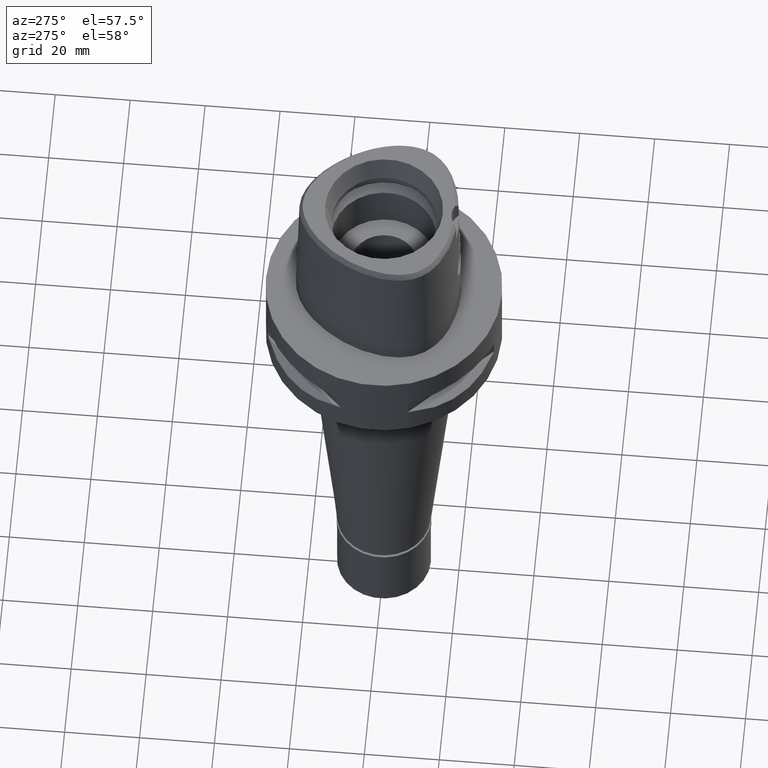
[diagram: clean part render]
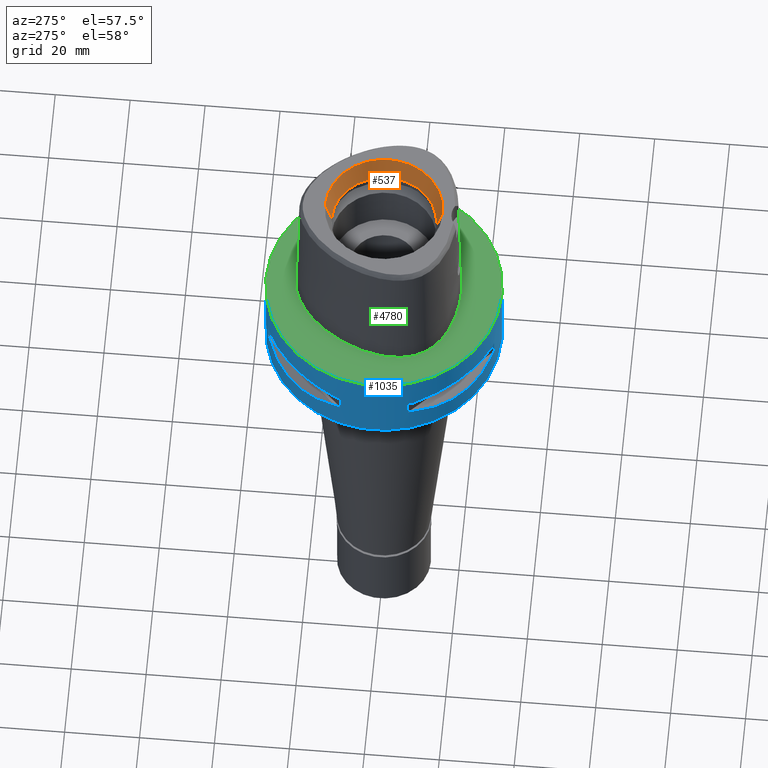
[diagram: same view with three faces highlighted in distinct colors, each labeled with its STEP entity id]
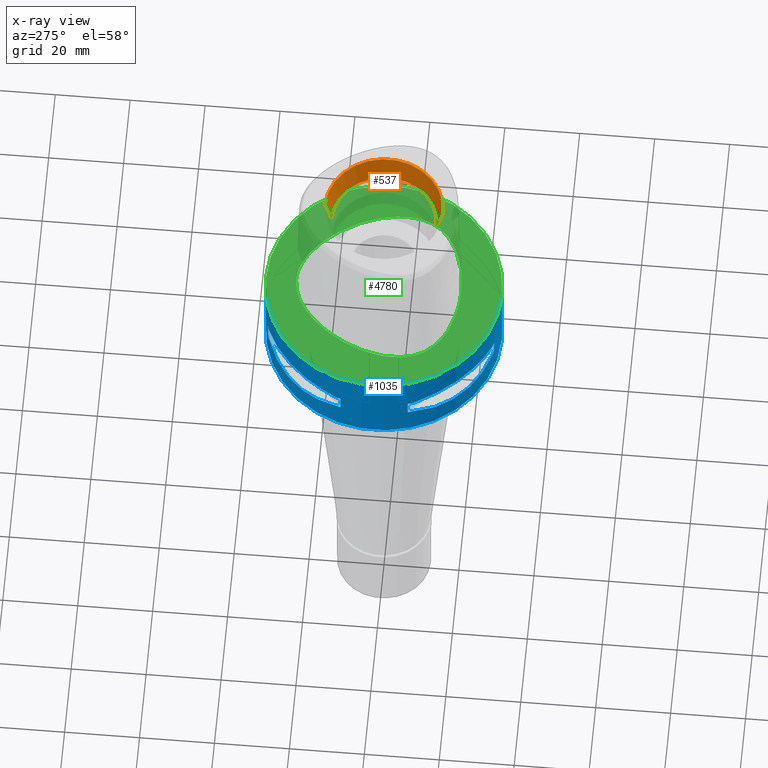
[diagram: x-ray of the same camera — body ghosted, the three highlighted faces saturated]
A machine part, auxiliary view with three faces highlighted in distinct colors.
The next image is the same camera in x-ray (body ghosted, the three faces saturated) — at least one of them is partly hidden behind the body in this view.
Their STEP definitions:

[orange] entity #537 — the highlighted conical surface has half-angle 15 deg.
#63 = CARTESIAN_POINT ( 'NONE',  ( 0.0000000000000000000, 0.0000000000000000000, 38.00000000000000000 ) ) ;
#277 = CARTESIAN_POINT ( 'NONE',  ( 0.0000000000000000000, 14.00000000000000000, 31.60000000000000142 ) ) ;
#298 = DIRECTION ( 'NONE',  ( 0.0000000000000000000, 0.0000000000000000000, 1.000000000000000000 ) ) ;
#302 = LINE ( 'NONE', #3118, #2695 ) ;
#537 = ADVANCED_FACE ( 'NONE', ( #2612 ), #1532, .F. ) ;
#549 = LINE ( 'NONE', #4873, #4037 ) ;
#636 = VERTEX_POINT ( 'NONE', #277 ) ;
#694 = EDGE_CURVE ( 'NONE', #2716, #2167, #2762, .T. ) ;
#714 = CARTESIAN_POINT ( 'NONE',  ( 0.0000000000000000000, 0.0000000000000000000, 34.79999999999999716 ) ) ;
#1393 = EDGE_CURVE ( 'NONE', #2989, #636, #3735, .T. ) ;
#1532 = CONICAL_SURFACE ( 'NONE', #4798, 14.85743741577999977, 0.2617993877991000029 ) ;
#1545 = DIRECTION ( 'NONE',  ( 0.0000000000000000000, 0.0000000000000000000, 1.000000000000000000 ) ) ;
#1934 = DIRECTION ( 'NONE',  ( 0.0000000000000000000, -1.000000000000000000, 0.0000000000000000000 ) ) ;
#2167 = VERTEX_POINT ( 'NONE', #3119 ) ;
#2502 = ORIENTED_EDGE ( 'NONE', *, *, #694, .T. ) ;
#2505 = ORIENTED_EDGE ( 'NONE', *, *, #2813, .F. ) ;
#2612 = FACE_OUTER_BOUND ( 'NONE', #3179, .T. ) ;
#2695 = VECTOR ( 'NONE', #2788, 1000.000000000000000 ) ;
#2716 = VERTEX_POINT ( 'NONE', #4601 ) ;
#2762 = CIRCLE ( 'NONE', #4387, 15.71487483155999776 ) ;
#2788 = DIRECTION ( 'NONE',  ( 0.0000000000000000000, 0.2588190451025869088, 0.9659258262890505486 ) ) ;
#2813 = EDGE_CURVE ( 'NONE', #636, #2167, #302, .T. ) ;
#2989 = VERTEX_POINT ( 'NONE', #3248 ) ;
#3118 = CARTESIAN_POINT ( 'NONE',  ( 0.0000000000000000000, 14.00000000000000000, 31.60000000000000142 ) ) ;
#3119 = CARTESIAN_POINT ( 'NONE',  ( 0.0000000000000000000, 15.71487483155999776, 38.00000000000000000 ) ) ;
#3179 = EDGE_LOOP ( 'NONE', ( #2505, #4924, #4675, #2502 ) ) ;
#3248 = CARTESIAN_POINT ( 'NONE',  ( 0.0000000000000000000, -14.00000000000000000, 31.60000000000000142 ) ) ;
#3423 = DIRECTION ( 'NONE',  ( 0.0000000000000000000, 1.000000000000000000, 0.0000000000000000000 ) ) ;
#3667 = DIRECTION ( 'NONE',  ( 0.0000000000000000000, -0.2588190451025869088, 0.9659258262890505486 ) ) ;
#3735 = CIRCLE ( 'NONE', #4969, 14.00000000000000000 ) ;
#4037 = VECTOR ( 'NONE', #3667, 1000.000000000000000 ) ;
#4283 = DIRECTION ( 'NONE',  ( 0.0000000000000000000, -1.000000000000000000, 0.0000000000000000000 ) ) ;
#4290 = DIRECTION ( 'NONE',  ( 0.0000000000000000000, 0.0000000000000000000, 1.000000000000000000 ) ) ;
#4364 = EDGE_CURVE ( 'NONE', #2989, #2716, #549, .T. ) ;
#4387 = AXIS2_PLACEMENT_3D ( 'NONE', #63, #4290, #1934 ) ;
#4601 = CARTESIAN_POINT ( 'NONE',  ( 0.0000000000000000000, -15.71487483155999776, 38.00000000000000000 ) ) ;
#4675 = ORIENTED_EDGE ( 'NONE', *, *, #4364, .T. ) ;
#4798 = AXIS2_PLACEMENT_3D ( 'NONE', #714, #298, #3423 ) ;
#4873 = CARTESIAN_POINT ( 'NONE',  ( 0.0000000000000000000, -14.00000000000000000, 31.60000000000000142 ) ) ;
#4924 = ORIENTED_EDGE ( 'NONE', *, *, #1393, .F. ) ;
#4969 = AXIS2_PLACEMENT_3D ( 'NONE', #5054, #1545, #4283 ) ;
#5054 = CARTESIAN_POINT ( 'NONE',  ( 0.0000000000000000000, 0.0000000000000000000, 31.60000000000000142 ) ) ;

[blue] entity #1035 — the highlighted cylindrical surface (partial cylindrical patch) has radius 31.5 mm, axis along (0, 0, -1).
#18 = CARTESIAN_POINT ( 'NONE',  ( -23.90617837147178193, 20.64154884328071660, -8.160613588465007950 ) ) ;
#37 = CARTESIAN_POINT ( 'NONE',  ( -8.981198972017999438, -30.19251670572000279, -14.05000000000000071 ) ) ;
#54 = CARTESIAN_POINT ( 'NONE',  ( -16.98999780422078132, -26.52527364208593141, -15.41788098766319060 ) ) ;
#86 = EDGE_CURVE ( 'NONE', #2191, #3855, #4059, .T. ) ;
#94 = CARTESIAN_POINT ( 'NONE',  ( -12.70092055730904868, 28.92474506844682125, -9.353547358226720121 ) ) ;
#134 = DIRECTION ( 'NONE',  ( 0.0000000000000000000, 0.0000000000000000000, -1.000000000000000000 ) ) ;
#147 = CARTESIAN_POINT ( 'NONE',  ( -18.81462633032051102, -25.37272068398778657, -8.309724968596476913 ) ) ;
#151 = DIRECTION ( 'NONE',  ( 0.0000000000000000000, 1.000000000000000000, 0.0000000000000000000 ) ) ;
#164 = CARTESIAN_POINT ( 'NONE',  ( -16.89910283486523923, 26.58330558444462355, -15.40446471307224741 ) ) ;
#189 = CARTESIAN_POINT ( 'NONE',  ( -27.86285265926610322, 14.89252659057099493, -15.10765629751760031 ) ) ;
#213 = DIRECTION ( 'NONE',  ( 0.0000000000000000000, 0.0000000000000000000, 1.000000000000000000 ) ) ;
#224 = CARTESIAN_POINT ( 'NONE',  ( 0.0000000000000000000, -31.50000000000000000, 0.0000000000000000000 ) ) ;
#225 = AXIS2_PLACEMENT_3D ( 'NONE', #4962, #372, #2419 ) ;
#246 = FACE_BOUND ( 'NONE', #3602, .T. ) ;
#257 = ORIENTED_EDGE ( 'NONE', *, *, #492, .F. ) ;
#296 = ORIENTED_EDGE ( 'NONE', *, *, #4521, .F. ) ;
#307 = DIRECTION ( 'NONE',  ( -0.2851174276831918153, -0.9584925938322735872, 0.0000000000000000000 ) ) ;
#325 = B_SPLINE_CURVE_WITH_KNOTS ( 'NONE', 3,
 ( #5024, #4234, #1043, #3843, #337, #4637, #1825, #1138, #1423, #2602, #4158, #657, #1189, #1566, #1643, #1266, #3560, #3483, #779, #54, #1975, #4304, #806, #2749 ),
 .UNSPECIFIED., .F., .F.,
 ( 4, 1, 1, 1, 1, 1, 2, 2, 2, 1, 1, 1, 1, 1, 2, 2, 4 ),
 ( 0.0000000000000000000, 0.1249999999999912292, 0.1874999999999869826, 0.2187499999999850120, 0.2343749999999839295, 0.2421874999999835409, 0.2460937499999835687, 0.2499999999999836242, 0.4999999999999924505, 0.6249999999999968914, 0.6874999999999992228, 0.7187500000000003331, 0.7343750000000009992, 0.7421875000000014433, 0.7460937500000016653, 0.7500000000000019984, 1.000000000000000000 ),
 .UNSPECIFIED. ) ;
#337 = CARTESIAN_POINT ( 'NONE',  ( -27.11872488588860008, -16.03138450079452682, -15.26880420107959146 ) ) ;
#338 = CARTESIAN_POINT ( 'NONE',  ( -29.71690375017999841, 10.44775724750000023, -9.949999999998999201 ) ) ;
#363 = CARTESIAN_POINT ( 'NONE',  ( -10.44775724750000023, 29.71690375017999841, -9.949999999998999201 ) ) ;
#372 = DIRECTION ( 'NONE',  ( 0.0000000000000000000, 0.0000000000000000000, -1.000000000000000000 ) ) ;
#387 = AXIS2_PLACEMENT_3D ( 'NONE', #546, #2464, #2899 ) ;
#400 = CIRCLE ( 'NONE', #4814, 31.50000000000001776 ) ;
#422 = DIRECTION ( 'NONE',  ( 0.0000000000000000000, 0.0000000000000000000, 1.000000000000000000 ) ) ;
#438 = VERTEX_POINT ( 'NONE', #2637 ) ;
#458 = DIRECTION ( 'NONE',  ( 0.0000000000000000000, 0.0000000000000000000, 1.000000000000000000 ) ) ;
#492 = EDGE_CURVE ( 'NONE', #1631, #3046, #1121, .T. ) ;
#497 = CARTESIAN_POINT ( 'NONE',  ( -29.71690375017999841, -10.44775724750000023, -9.949999999998999201 ) ) ;
#510 = CARTESIAN_POINT ( 'NONE',  ( -18.81455742163205613, 25.37277178168285729, -8.309746333127383977 ) ) ;
#514 = CARTESIAN_POINT ( 'NONE',  ( 0.0000000000000000000, 0.0000000000000000000, -22.00000000000000000 ) ) ;
#522 = CARTESIAN_POINT ( 'NONE',  ( -30.19251670572000279, -8.981198972019999616, -9.950000000000001066 ) ) ;
#546 = CARTESIAN_POINT ( 'NONE',  ( 0.0000000000000000000, 0.0000000000000000000, -9.950000000000001066 ) ) ;
#553 = CARTESIAN_POINT ( 'NONE',  ( -26.01217882834774997, 17.76952662671796901, -15.52665221626049608 ) ) ;
#560 = CARTESIAN_POINT ( 'NONE',  ( -12.70097436183466577, -28.92472615205409880, -9.353533115206113635 ) ) ;
#567 = CIRCLE ( 'NONE', #1464, 31.50000000000000711 ) ;
#581 = CARTESIAN_POINT ( 'NONE',  ( -16.86571563436660171, 26.60451452154748608, -15.39949295786010097 ) ) ;
#603 = CARTESIAN_POINT ( 'NONE',  ( -16.80193241490601253, 26.64486562695759631, -15.38992683735703437 ) ) ;
#616 = AXIS2_PLACEMENT_3D ( 'NONE', #4047, #213, #4100 ) ;
#632 = AXIS2_PLACEMENT_3D ( 'NONE', #4545, #1856, #4166 ) ;
#651 = ORIENTED_EDGE ( 'NONE', *, *, #4877, .F. ) ;
#657 = CARTESIAN_POINT ( 'NONE',  ( -23.89673728055697310, -20.65093790435582122, -15.83935804901768307 ) ) ;
#659 = EDGE_CURVE ( 'NONE', #2040, #2556, #4630, .T. ) ;
#720 = EDGE_CURVE ( 'NONE', #1279, #3046, #1290, .T. ) ;
#748 = EDGE_CURVE ( 'NONE', #3687, #1821, #836, .T. ) ;
#767 = VERTEX_POINT ( 'NONE', #4697 ) ;
#779 = CARTESIAN_POINT ( 'NONE',  ( -17.05047092244258522, -26.48642424310472876, -15.42670883407663496 ) ) ;
#806 = CARTESIAN_POINT ( 'NONE',  ( -12.73197616787212993, -28.91382665369246752, -14.65467361753630549 ) ) ;
#820 = CARTESIAN_POINT ( 'NONE',  ( -27.88214534470564843, -14.84422749199030811, -8.906206096497941260 ) ) ;
#836 = LINE ( 'NONE', #37, #3412 ) ;
#845 = EDGE_CURVE ( 'NONE', #2040, #4357, #4087, .T. ) ;
#865 = CARTESIAN_POINT ( 'NONE',  ( -16.03138450078630584, 27.11872488589149199, -15.26880420107739234 ) ) ;
#905 = CARTESIAN_POINT ( 'NONE',  ( 0.0000000000000000000, 0.0000000000000000000, -9.950000000000001066 ) ) ;
#913 = CARTESIAN_POINT ( 'NONE',  ( -8.981198972017999438, 30.19251670572000279, -9.950000000000001066 ) ) ;
#926 = EDGE_CURVE ( 'NONE', #1579, #2208, #3620, .T. ) ;
#944 = CARTESIAN_POINT ( 'NONE',  ( -26.52527364208594562, 16.98999780422062500, -15.41788098766312487 ) ) ;
#995 = CARTESIAN_POINT ( 'NONE',  ( -28.91382665368951876, 12.73197616788052500, -14.65467361753852060 ) ) ;
#1035 = ADVANCED_FACE ( 'NONE', ( #3748, #3822, #246 ), #1827, .T. ) ;
#1043 = CARTESIAN_POINT ( 'NONE',  ( -28.62019653467925551, -13.25636937906381974, -14.74888225542034448 ) ) ;
#1083 = CARTESIAN_POINT ( 'NONE',  ( -8.981198972019999616, -30.19251670572000279, -14.05000000000000071 ) ) ;
#1105 = AXIS2_PLACEMENT_3D ( 'NONE', #3642, #134, #4183 ) ;
#1121 = LINE ( 'NONE', #4138, #1776 ) ;
#1138 = CARTESIAN_POINT ( 'NONE',  ( -26.64486562695712379, -16.80193241490734835, -15.38992683735741451 ) ) ;
#1185 = CIRCLE ( 'NONE', #1105, 31.50000000000000000 ) ;
#1189 = CARTESIAN_POINT ( 'NONE',  ( -21.46242677078074834, -23.08532645888130830, -15.83938991065315172 ) ) ;
#1197 = CARTESIAN_POINT ( 'NONE',  ( -10.44775724750000023, 29.71690375017999841, -14.05000000000000071 ) ) ;
#1212 = AXIS2_PLACEMENT_3D ( 'NONE', #2955, #2260, #4186 ) ;
#1247 = CARTESIAN_POINT ( 'NONE',  ( -15.11986997310366299, 27.64634172018154246, -15.11207862403683144 ) ) ;
#1251 = ORIENTED_EDGE ( 'NONE', *, *, #3241, .T. ) ;
#1266 = CARTESIAN_POINT ( 'NONE',  ( -17.76952662671988392, -26.01217882834739470, -15.52665221626113912 ) ) ;
#1279 = VERTEX_POINT ( 'NONE', #338 ) ;
#1290 = CIRCLE ( 'NONE', #2098, 31.50000000000000711 ) ;
#1299 = AXIS2_PLACEMENT_3D ( 'NONE', #514, #3252, #151 ) ;
#1300 = DIRECTION ( 'NONE',  ( 0.0000000000000000000, 0.0000000000000000000, -1.000000000000000000 ) ) ;
#1323 = CARTESIAN_POINT ( 'NONE',  ( 0.0000000000000000000, 0.0000000000000000000, -14.05000000000000071 ) ) ;
#1423 = CARTESIAN_POINT ( 'NONE',  ( -26.60451452154724805, -16.86571563436727317, -15.39949295786030348 ) ) ;
#1464 = AXIS2_PLACEMENT_3D ( 'NONE', #905, #458, #2093 ) ;
#1470 = EDGE_CURVE ( 'NONE', #2748, #3449, #4149, .T. ) ;
#1501 = DIRECTION ( 'NONE',  ( 0.0000000000000000000, 0.0000000000000000000, 1.000000000000000000 ) ) ;
#1557 = ORIENTED_EDGE ( 'NONE', *, *, #3496, .F. ) ;
#1566 = CARTESIAN_POINT ( 'NONE',  ( -20.18579225686149314, -24.23018836745477245, -15.78559396979075125 ) ) ;
#1579 = VERTEX_POINT ( 'NONE', #3025 ) ;
#1580 = CARTESIAN_POINT ( 'NONE',  ( -27.88210502983995553, 14.84430321578703271, -8.906184731967027091 ) ) ;
#1582 = CARTESIAN_POINT ( 'NONE',  ( 0.0000000000000000000, 31.50000000000000000, -22.00000000000000000 ) ) ;
#1594 = ORIENTED_EDGE ( 'NONE', *, *, #1470, .T. ) ;
#1631 = VERTEX_POINT ( 'NONE', #3816 ) ;
#1643 = CARTESIAN_POINT ( 'NONE',  ( -18.59229662065117594, -25.43927894891756125, -15.62866126334438732 ) ) ;
#1673 = LINE ( 'NONE', #3184, #4035 ) ;
#1684 = CARTESIAN_POINT ( 'NONE',  ( -28.92472615205409170, 12.70097436183465867, -9.353533115206113635 ) ) ;
#1744 = DIRECTION ( 'NONE',  ( 0.0000000000000000000, 0.0000000000000000000, -1.000000000000000000 ) ) ;
#1776 = VECTOR ( 'NONE', #1501, 1000.000000000000000 ) ;
#1810 = ORIENTED_EDGE ( 'NONE', *, *, #3795, .F. ) ;
#1821 = VERTEX_POINT ( 'NONE', #1907 ) ;
#1825 = CARTESIAN_POINT ( 'NONE',  ( -26.70521063584408950, -16.70616724746141202, -15.37546661817775373 ) ) ;
#1827 = CYLINDRICAL_SURFACE ( 'NONE', #1212, 31.50000000000000000 ) ;
#1856 = DIRECTION ( 'NONE',  ( 0.0000000000000000000, 0.0000000000000000000, -1.000000000000000000 ) ) ;
#1878 = ORIENTED_EDGE ( 'NONE', *, *, #3747, .T. ) ;
#1907 = CARTESIAN_POINT ( 'NONE',  ( -8.981198972017999438, -30.19251670572000279, -9.950000000000001066 ) ) ;
#1965 = VERTEX_POINT ( 'NONE', #2968 ) ;
#1967 = CARTESIAN_POINT ( 'NONE',  ( -29.71690375017999841, -10.44775724750000023, -14.05000000000000071 ) ) ;
#1975 = CARTESIAN_POINT ( 'NONE',  ( -16.96123479564944247, -26.54368690921640450, -15.41365572341321766 ) ) ;
#1989 = CARTESIAN_POINT ( 'NONE',  ( -23.90617837147174640, -20.64154884328073791, -8.160627831309671620 ) ) ;
#2040 = VERTEX_POINT ( 'NONE', #2620 ) ;
#2065 = CARTESIAN_POINT ( 'NONE',  ( -29.71690375017999841, 10.44775724750000023, -9.949999999998999201 ) ) ;
#2093 = DIRECTION ( 'NONE',  ( -0.3316748332540863653, -0.9433937698468619626, 0.0000000000000000000 ) ) ;
#2098 = AXIS2_PLACEMENT_3D ( 'NONE', #3570, #422, #4722 ) ;
#2126 = ORIENTED_EDGE ( 'NONE', *, *, #720, .T. ) ;
#2151 = ORIENTED_EDGE ( 'NONE', *, *, #2967, .T. ) ;
#2158 = CARTESIAN_POINT ( 'NONE',  ( -20.65093790435489396, 23.89673728056195756, -15.83935804901932087 ) ) ;
#2191 = VERTEX_POINT ( 'NONE', #1967 ) ;
#2199 = VECTOR ( 'NONE', #3838, 1000.000000000000000 ) ;
#2208 = VERTEX_POINT ( 'NONE', #1582 ) ;
#2223 = ORIENTED_EDGE ( 'NONE', *, *, #4564, .T. ) ;
#2260 = DIRECTION ( 'NONE',  ( 0.0000000000000000000, 0.0000000000000000000, -1.000000000000000000 ) ) ;
#2277 = LINE ( 'NONE', #4922, #2199 ) ;
#2283 = EDGE_CURVE ( 'NONE', #2208, #438, #3495, .T. ) ;
#2306 = EDGE_CURVE ( 'NONE', #767, #1821, #567, .T. ) ;
#2374 = CARTESIAN_POINT ( 'NONE',  ( -25.37277178168285374, -18.81455742163204548, -8.309746333127382201 ) ) ;
#2419 = DIRECTION ( 'NONE',  ( -0.3316748332540863653, 0.9433937698468619626, 0.0000000000000000000 ) ) ;
#2454 = CARTESIAN_POINT ( 'NONE',  ( -25.37272068398780434, 18.81462633032049325, -8.309724968596476913 ) ) ;
#2464 = DIRECTION ( 'NONE',  ( 0.0000000000000000000, 0.0000000000000000000, 1.000000000000000000 ) ) ;
#2471 = CARTESIAN_POINT ( 'NONE',  ( -26.48642424310478205, 17.05047092244226903, -15.42670883407652305 ) ) ;
#2556 = VERTEX_POINT ( 'NONE', #4940 ) ;
#2588 = B_SPLINE_CURVE_WITH_KNOTS ( 'NONE', 3,
 ( #3604, #94, #2763, #510, #2839, #18, #2454, #1580, #1684, #2065 ),
 .UNSPECIFIED., .F., .F.,
 ( 4, 2, 2, 2, 4 ),
 ( 0.0000000000000000000, 0.2500000000000000000, 0.5000000000000000000, 0.7500000000000000000, 1.000000000000000000 ),
 .UNSPECIFIED. ) ;
#2602 = CARTESIAN_POINT ( 'NONE',  ( -26.58330558444475145, -16.89910283486517528, -15.40446471307230070 ) ) ;
#2620 = CARTESIAN_POINT ( 'NONE',  ( -10.44775724750000023, 29.71690375017999841, -14.05000000000000071 ) ) ;
#2637 = CARTESIAN_POINT ( 'NONE',  ( 0.0000000000000000000, -31.50000000000000000, -22.00000000000000000 ) ) ;
#2659 = VECTOR ( 'NONE', #1744, 1000.000000000000000 ) ;
#2687 = VECTOR ( 'NONE', #1300, 1000.000000000000000 ) ;
#2732 = DIRECTION ( 'NONE',  ( 0.0000000000000000000, 0.0000000000000000000, 1.000000000000000000 ) ) ;
#2748 = VERTEX_POINT ( 'NONE', #4624 ) ;
#2749 = CARTESIAN_POINT ( 'NONE',  ( -10.44775724750000023, -29.71690375017999841, -14.05000000000000071 ) ) ;
#2757 = CARTESIAN_POINT ( 'NONE',  ( -13.25636937904505785, 28.62019653468586355, -14.74888225541535292 ) ) ;
#2761 = ORIENTED_EDGE ( 'NONE', *, *, #5035, .T. ) ;
#2763 = CARTESIAN_POINT ( 'NONE',  ( -14.84422749199032943, 27.88214534470564132, -8.906206096497943037 ) ) ;
#2804 = CARTESIAN_POINT ( 'NONE',  ( -11.58970337494912251, 29.31542262584540737, -14.35229357167066233 ) ) ;
#2839 = CARTESIAN_POINT ( 'NONE',  ( -20.64154884328072370, 23.90617837147176772, -8.160627831309673397 ) ) ;
#2879 = DIRECTION ( 'NONE',  ( 0.0000000000000000000, 0.0000000000000000000, -1.000000000000000000 ) ) ;
#2899 = DIRECTION ( 'NONE',  ( -0.2851174276831918153, 0.9584925938322735872, 0.0000000000000000000 ) ) ;
#2955 = CARTESIAN_POINT ( 'NONE',  ( 0.0000000000000000000, 0.0000000000000000000, 6.440000000000000391 ) ) ;
#2967 = EDGE_CURVE ( 'NONE', #3449, #1279, #2588, .T. ) ;
#2968 = CARTESIAN_POINT ( 'NONE',  ( -10.44775724750000023, -29.71690375017999841, -14.05000000000000071 ) ) ;
#2979 = CARTESIAN_POINT ( 'NONE',  ( -30.19251670572000279, -8.981198972017999438, -14.05000000000000071 ) ) ;
#2998 = EDGE_CURVE ( 'NONE', #3574, #767, #3189, .T. ) ;
#3002 = VERTEX_POINT ( 'NONE', #224 ) ;
#3025 = CARTESIAN_POINT ( 'NONE',  ( 0.0000000000000000000, 31.50000000000000000, 0.0000000000000000000 ) ) ;
#3046 = VERTEX_POINT ( 'NONE', #4913 ) ;
#3167 = ORIENTED_EDGE ( 'NONE', *, *, #748, .F. ) ;
#3184 = CARTESIAN_POINT ( 'NONE',  ( -30.19251670572000279, -8.981198972017999438, -9.950000000000001066 ) ) ;
#3189 = B_SPLINE_CURVE_WITH_KNOTS ( 'NONE', 3,
 ( #4703, #4320, #820, #2374, #1989, #3927, #147, #3652, #560, #3325 ),
 .UNSPECIFIED., .F., .F.,
 ( 4, 2, 2, 2, 4 ),
 ( 0.0000000000000000000, 0.2499999999999998335, 0.4999999999999998890, 0.7499999999999998890, 1.000000000000000000 ),
 .UNSPECIFIED. ) ;
#3213 = CARTESIAN_POINT ( 'NONE',  ( -18.86897208075099996, 25.32725744466366891, -15.69588095933659488 ) ) ;
#3241 = EDGE_CURVE ( 'NONE', #1631, #4357, #3889, .T. ) ;
#3252 = DIRECTION ( 'NONE',  ( 0.0000000000000000000, 0.0000000000000000000, 1.000000000000000000 ) ) ;
#3266 = CARTESIAN_POINT ( 'NONE',  ( -23.08532645888177015, 21.46242677077824368, -15.83938991065229196 ) ) ;
#3294 = EDGE_LOOP ( 'NONE', ( #2126, #257, #1251, #4561, #3854, #296, #1594, #2151 ) ) ;
#3318 = CARTESIAN_POINT ( 'NONE',  ( -25.43927894891815811, 18.59229662064788258, -15.62866126334327710 ) ) ;
#3324 = ORIENTED_EDGE ( 'NONE', *, *, #86, .T. ) ;
#3325 = CARTESIAN_POINT ( 'NONE',  ( -10.44775724750000023, -29.71690375017999841, -9.949999999998999201 ) ) ;
#3412 = VECTOR ( 'NONE', #2732, 1000.000000000000000 ) ;
#3449 = VERTEX_POINT ( 'NONE', #363 ) ;
#3475 = ORIENTED_EDGE ( 'NONE', *, *, #926, .T. ) ;
#3483 = CARTESIAN_POINT ( 'NONE',  ( -17.14106442934748742, -26.42800887047532754, -15.43984550238493547 ) ) ;
#3495 = CIRCLE ( 'NONE', #1299, 31.50000000000000000 ) ;
#3496 = EDGE_CURVE ( 'NONE', #2191, #1965, #325, .T. ) ;
#3519 = DIRECTION ( 'NONE',  ( 0.0000000000000000000, 0.0000000000000000000, -1.000000000000000000 ) ) ;
#3560 = CARTESIAN_POINT ( 'NONE',  ( -17.35163608579770766, -26.29071741523690875, -15.46976201925451022 ) ) ;
#3570 = CARTESIAN_POINT ( 'NONE',  ( 0.0000000000000000000, 0.0000000000000000000, -9.950000000000001066 ) ) ;
#3574 = VERTEX_POINT ( 'NONE', #497 ) ;
#3602 = EDGE_LOOP ( 'NONE', ( #3603, #3167, #1878, #1557, #3324, #651, #2761, #4195 ) ) ;
#3603 = ORIENTED_EDGE ( 'NONE', *, *, #2306, .T. ) ;
#3604 = CARTESIAN_POINT ( 'NONE',  ( -10.44775724750000023, 29.71690375017999841, -9.949999999998999201 ) ) ;
#3620 = LINE ( 'NONE', #4799, #2687 ) ;
#3642 = CARTESIAN_POINT ( 'NONE',  ( 0.0000000000000000000, 0.0000000000000000000, 0.0000000000000000000 ) ) ;
#3652 = CARTESIAN_POINT ( 'NONE',  ( -14.84430321578703804, -27.88210502983994843, -8.906184731967027091 ) ) ;
#3671 = CARTESIAN_POINT ( 'NONE',  ( -29.71690375017999841, 10.44775724750000023, -14.05000000000000071 ) ) ;
#3687 = VERTEX_POINT ( 'NONE', #1083 ) ;
#3693 = CARTESIAN_POINT ( 'NONE',  ( -26.29071741523710060, 17.35163608579668804, -15.46976201925415317 ) ) ;
#3713 = CARTESIAN_POINT ( 'NONE',  ( -29.71690375017999841, 10.44775724750000023, -14.05000000000000071 ) ) ;
#3747 = EDGE_CURVE ( 'NONE', #3687, #1965, #400, .T. ) ;
#3748 = FACE_OUTER_BOUND ( 'NONE', #4594, .T. ) ;
#3795 = EDGE_CURVE ( 'NONE', #3002, #438, #2277, .T. ) ;
#3797 = CIRCLE ( 'NONE', #616, 31.50000000000001776 ) ;
#3814 = CARTESIAN_POINT ( 'NONE',  ( 0.0000000000000000000, 0.0000000000000000000, -14.05000000000000071 ) ) ;
#3816 = CARTESIAN_POINT ( 'NONE',  ( -30.19251670572000279, 8.981198972019999616, -14.05000000000000071 ) ) ;
#3822 = FACE_BOUND ( 'NONE', #3294, .T. ) ;
#3838 = DIRECTION ( 'NONE',  ( 0.0000000000000000000, 0.0000000000000000000, -1.000000000000000000 ) ) ;
#3843 = CARTESIAN_POINT ( 'NONE',  ( -27.64634172017658642, -15.11986997311774417, -15.11207862404057423 ) ) ;
#3854 = ORIENTED_EDGE ( 'NONE', *, *, #659, .T. ) ;
#3855 = VERTEX_POINT ( 'NONE', #2979 ) ;
#3889 = CIRCLE ( 'NONE', #4139, 31.50000000000001776 ) ;
#3922 = CARTESIAN_POINT ( 'NONE',  ( -16.70616724745912407, 26.70521063584489596, -15.37546661817712490 ) ) ;
#3927 = CARTESIAN_POINT ( 'NONE',  ( -20.64154884328073081, -23.90617837147176061, -8.160613588465007950 ) ) ;
#4035 = VECTOR ( 'NONE', #3519, 1000.000000000000000 ) ;
#4046 = LINE ( 'NONE', #913, #2659 ) ;
#4047 = CARTESIAN_POINT ( 'NONE',  ( 0.0000000000000000000, 0.0000000000000000000, -9.950000000000001066 ) ) ;
#4059 = CIRCLE ( 'NONE', #632, 31.50000000000000711 ) ;
#4087 = B_SPLINE_CURVE_WITH_KNOTS ( 'NONE', 3,
 ( #1197, #2804, #2757, #1247, #865, #4313, #3922, #603, #581, #164, #3213, #2158, #3266, #4439, #3318, #553, #3693, #4878, #2471, #944, #4772, #189, #995, #3671 ),
 .UNSPECIFIED., .F., .F.,
 ( 4, 1, 1, 1, 1, 1, 2, 2, 2, 1, 1, 1, 1, 1, 2, 2, 4 ),
 ( 0.0000000000000000000, 0.1249999999999917843, 0.1874999999999877320, 0.2187499999999857059, 0.2343749999999849287, 0.2421874999999843736, 0.2460937499999842071, 0.2499999999999840128, 0.4999999999999846789, 0.6249999999999850120, 0.6874999999999850120, 0.7187499999999851230, 0.7343749999999852340, 0.7421874999999852340, 0.7460937499999851230, 0.7499999999999851230, 1.000000000000000000 ),
 .UNSPECIFIED. ) ;
#4100 = DIRECTION ( 'NONE',  ( -0.9584925938322735872, -0.2851174276831918153, 0.0000000000000000000 ) ) ;
#4138 = CARTESIAN_POINT ( 'NONE',  ( -30.19251670572000279, 8.981198972017999438, -14.05000000000000071 ) ) ;
#4139 = AXIS2_PLACEMENT_3D ( 'NONE', #1323, #2879, #4437 ) ;
#4149 = CIRCLE ( 'NONE', #387, 31.50000000000001776 ) ;
#4158 = CARTESIAN_POINT ( 'NONE',  ( -25.32725744465475515, -18.86897208075581034, -15.69588095933493932 ) ) ;
#4166 = DIRECTION ( 'NONE',  ( -0.9433937698468619626, -0.3316748332540863653, 0.0000000000000000000 ) ) ;
#4179 = DIRECTION ( 'NONE',  ( 0.0000000000000000000, 0.0000000000000000000, -1.000000000000000000 ) ) ;
#4183 = DIRECTION ( 'NONE',  ( 0.0000000000000000000, -1.000000000000000000, 0.0000000000000000000 ) ) ;
#4186 = DIRECTION ( 'NONE',  ( 0.0000000000000000000, -1.000000000000000000, 0.0000000000000000000 ) ) ;
#4195 = ORIENTED_EDGE ( 'NONE', *, *, #2998, .T. ) ;
#4234 = CARTESIAN_POINT ( 'NONE',  ( -29.31542262584164504, -11.58970337495982328, -14.35229357167352049 ) ) ;
#4304 = CARTESIAN_POINT ( 'NONE',  ( -14.89252659056261052, -27.86285265926905197, -15.10765629751539230 ) ) ;
#4313 = CARTESIAN_POINT ( 'NONE',  ( -16.48208282229096611, 26.84474411198699784, -15.34094883778013596 ) ) ;
#4320 = CARTESIAN_POINT ( 'NONE',  ( -28.92474506844684257, -12.70092055730902736, -9.353547358226718345 ) ) ;
#4357 = VERTEX_POINT ( 'NONE', #3713 ) ;
#4437 = DIRECTION ( 'NONE',  ( -0.9584925938322735872, 0.2851174276831918153, 0.0000000000000000000 ) ) ;
#4439 = CARTESIAN_POINT ( 'NONE',  ( -24.23018836745557181, 20.18579225685711265, -15.78559396978928397 ) ) ;
#4521 = EDGE_CURVE ( 'NONE', #2748, #2556, #4046, .T. ) ;
#4536 = VERTEX_POINT ( 'NONE', #522 ) ;
#4545 = CARTESIAN_POINT ( 'NONE',  ( 0.0000000000000000000, 0.0000000000000000000, -14.05000000000000071 ) ) ;
#4561 = ORIENTED_EDGE ( 'NONE', *, *, #845, .F. ) ;
#4564 = EDGE_CURVE ( 'NONE', #3002, #1579, #1185, .T. ) ;
#4594 = EDGE_LOOP ( 'NONE', ( #4832, #1810, #2223, #3475 ) ) ;
#4624 = CARTESIAN_POINT ( 'NONE',  ( -8.981198972019999616, 30.19251670572000279, -9.950000000000001066 ) ) ;
#4630 = CIRCLE ( 'NONE', #225, 31.50000000000000711 ) ;
#4637 = CARTESIAN_POINT ( 'NONE',  ( -26.84474411198545596, -16.48208282229538213, -15.34094883778132790 ) ) ;
#4697 = CARTESIAN_POINT ( 'NONE',  ( -10.44775724750000023, -29.71690375017999841, -9.949999999998999201 ) ) ;
#4703 = CARTESIAN_POINT ( 'NONE',  ( -29.71690375017999841, -10.44775724750000023, -9.949999999998999201 ) ) ;
#4722 = DIRECTION ( 'NONE',  ( -0.9433937698468619626, 0.3316748332540863653, 0.0000000000000000000 ) ) ;
#4772 = CARTESIAN_POINT ( 'NONE',  ( -26.54368690921645069, 16.96123479564930747, -15.41365572341317147 ) ) ;
#4799 = CARTESIAN_POINT ( 'NONE',  ( 0.0000000000000000000, 31.50000000000000000, 0.0000000000000000000 ) ) ;
#4814 = AXIS2_PLACEMENT_3D ( 'NONE', #3814, #4179, #307 ) ;
#4832 = ORIENTED_EDGE ( 'NONE', *, *, #2283, .T. ) ;
#4877 = EDGE_CURVE ( 'NONE', #4536, #3855, #1673, .T. ) ;
#4878 = CARTESIAN_POINT ( 'NONE',  ( -26.42800887047543767, 17.14106442934696162, -15.43984550238475251 ) ) ;
#4913 = CARTESIAN_POINT ( 'NONE',  ( -30.19251670572000279, 8.981198972017999438, -9.950000000000001066 ) ) ;
#4922 = CARTESIAN_POINT ( 'NONE',  ( 0.0000000000000000000, -31.50000000000000000, 0.0000000000000000000 ) ) ;
#4940 = CARTESIAN_POINT ( 'NONE',  ( -8.981198972017999438, 30.19251670572000279, -14.05000000000000071 ) ) ;
#4962 = CARTESIAN_POINT ( 'NONE',  ( 0.0000000000000000000, 0.0000000000000000000, -14.05000000000000071 ) ) ;
#5024 = CARTESIAN_POINT ( 'NONE',  ( -29.71690375017999841, -10.44775724750000023, -14.05000000000000071 ) ) ;
#5035 = EDGE_CURVE ( 'NONE', #4536, #3574, #3797, .T. ) ;

[green] entity #4780 — the highlighted planar face has unit normal (0, 0, -1).
#3 = ORIENTED_EDGE ( 'NONE', *, *, #4564, .F. ) ;
#112 = CARTESIAN_POINT ( 'NONE',  ( -7.554098342022001066E-12, -20.67499999999999716, 5.806466418789999109E-14 ) ) ;
#134 = DIRECTION ( 'NONE',  ( 0.0000000000000000000, 0.0000000000000000000, -1.000000000000000000 ) ) ;
#140 = CARTESIAN_POINT ( 'NONE',  ( 22.05732879210958686, -6.847636725776191646, -1.967315058472654532E-06 ) ) ;
#144 = EDGE_LOOP ( 'NONE', ( #976, #3592 ) ) ;
#224 = CARTESIAN_POINT ( 'NONE',  ( 0.0000000000000000000, -31.50000000000000000, 0.0000000000000000000 ) ) ;
#238 = CARTESIAN_POINT ( 'NONE',  ( -2.564517725630172329, 23.29328124364892361, 2.581373183512935404E-07 ) ) ;
#274 = VERTEX_POINT ( 'NONE', #2891 ) ;
#361 = B_SPLINE_CURVE_WITH_KNOTS ( 'NONE', 3,
 ( #112, #4051, #1347, #1678, #4849, #4103, #893, #3719, #2107, #4463, #1651, #140, #3240, #4022, #4827, #1703, #2832, #4388, #2523, #4000, #1324, #505, #2059 ),
 .UNSPECIFIED., .F., .F.,
 ( 4, 1, 1, 1, 1, 1, 1, 1, 1, 1, 1, 1, 1, 1, 1, 1, 1, 1, 1, 1, 4 ),
 ( 0.0000000000000000000, 0.08333333333339000559, 0.1666666666667000196, 0.2083333333333000081, 0.2500000000000000000, 0.2916666666666999919, 0.3125000000000000000, 0.3333333333333000081, 0.3541666666666000163, 0.3749999999998999689, 0.4166666666666000163, 0.4583333333332000326, 0.4999999999998999689, 0.5833333333331000015, 0.6666666666664999852, 0.7499999999998000488, 0.8333333333329999704, 0.8749999999997000177, 0.9166666666664000651, 0.9583333333329999704, 1.000000000000000000 ),
 .UNSPECIFIED. ) ;
#505 = CARTESIAN_POINT ( 'NONE',  ( 0.8548392457934463895, 23.47500004918023464, -1.967315058472654532E-06 ) ) ;
#676 = CARTESIAN_POINT ( 'NONE',  ( -18.06826687964938927, 10.43171874676253807, 2.581373183512935404E-07 ) ) ;
#893 = CARTESIAN_POINT ( 'NONE',  ( 18.56841068725039179, -14.16937991674452668, -1.967315058472654532E-06 ) ) ;
#917 = EDGE_CURVE ( 'NONE', #3926, #274, #361, .T. ) ;
#976 = ORIENTED_EDGE ( 'NONE', *, *, #1657, .F. ) ;
#990 = CARTESIAN_POINT ( 'NONE',  ( -2.113823672681212518, -20.67499999354341966, 2.581373183512935404E-07 ) ) ;
#1038 = CARTESIAN_POINT ( 'NONE',  ( -21.55524825388553367, -8.996025388779925080, 2.581373183512935404E-07 ) ) ;
#1062 = CARTESIAN_POINT ( 'NONE',  ( -0.8548392418463244269, 23.47499999355245492, 2.581373183512935404E-07 ) ) ;
#1100 = DIRECTION ( 'NONE',  ( 0.0000000000000000000, -1.000000000000000000, 0.0000000000000000000 ) ) ;
#1105 = AXIS2_PLACEMENT_3D ( 'NONE', #3642, #134, #4183 ) ;
#1125 = EDGE_LOOP ( 'NONE', ( #4623, #3 ) ) ;
#1185 = CIRCLE ( 'NONE', #1105, 31.50000000000000000 ) ;
#1324 = CARTESIAN_POINT ( 'NONE',  ( 2.564517737066076108, 23.29328129842424389, -1.967315058472654532E-06 ) ) ;
#1347 = CARTESIAN_POINT ( 'NONE',  ( 6.341471027950916550, -20.29812504868961298, -1.967315058472654532E-06 ) ) ;
#1417 = CARTESIAN_POINT ( 'NONE',  ( -21.97832647148225149, -0.2810937511291029534, 2.581373183512935404E-07 ) ) ;
#1436 = CARTESIAN_POINT ( 'NONE',  ( 0.0000000000000000000, 0.0000000000000000000, 0.0000000000000000000 ) ) ;
#1579 = VERTEX_POINT ( 'NONE', #3025 ) ;
#1651 = CARTESIAN_POINT ( 'NONE',  ( 21.55524830740074904, -8.996025404686079696, -1.967315058472654532E-06 ) ) ;
#1657 = EDGE_CURVE ( 'NONE', #274, #3926, #5006, .T. ) ;
#1678 = CARTESIAN_POINT ( 'NONE',  ( 11.23259758417400356, -18.89324223397527547, -1.967315058472654532E-06 ) ) ;
#1703 = CARTESIAN_POINT ( 'NONE',  ( 18.06826692807789669, 10.43171877472035192, -1.967315058472654532E-06 ) ) ;
#1846 = CARTESIAN_POINT ( 'NONE',  ( -20.34961797996828992, -11.74885741863547395, 2.581373183512935404E-07 ) ) ;
#1871 = CARTESIAN_POINT ( 'NONE',  ( -11.23259756505342466, -18.89324218140264477, 2.581373183512935404E-07 ) ) ;
#1969 = EDGE_CURVE ( 'NONE', #1579, #3002, #4645, .T. ) ;
#2059 = CARTESIAN_POINT ( 'NONE',  ( 4.563157032635000015E-11, 23.47499999999000053, 5.514107688971999147E-14 ) ) ;
#2106 = AXIS2_PLACEMENT_3D ( 'NONE', #1436, #4919, #3732 ) ;
#2107 = CARTESIAN_POINT ( 'NONE',  ( 20.34961802823546151, -11.74885744650548247, -1.967315058472654532E-06 ) ) ;
#2229 = CARTESIAN_POINT ( 'NONE',  ( -14.67337964099457892, -17.21410155687792454, 2.581373183512935404E-07 ) ) ;
#2254 = CARTESIAN_POINT ( 'NONE',  ( -5.098437014874797946, 22.52602538461014348, 2.581373183512935404E-07 ) ) ;
#2523 = CARTESIAN_POINT ( 'NONE',  ( 7.571159459268176128, 21.31457035507845177, -1.967315058472654532E-06 ) ) ;
#2593 = CARTESIAN_POINT ( 'NONE',  ( -18.56841064672511976, -14.16937987836214141, 2.581373183512935404E-07 ) ) ;
#2625 = CARTESIAN_POINT ( 'NONE',  ( -22.24453907207502468, -4.100468750037554067, 2.581373183512935404E-07 ) ) ;
#2832 = CARTESIAN_POINT ( 'NONE',  ( 14.40795642737363735, 15.64093753191951208, -1.967315058472654532E-06 ) ) ;
#2891 = CARTESIAN_POINT ( 'NONE',  ( 4.563157032635000015E-11, 23.47499999999000053, 5.514107688971999147E-14 ) ) ;
#2975 = CARTESIAN_POINT ( 'NONE',  ( -22.05732873680717887, -6.847636717827832342, 2.581373183512935404E-07 ) ) ;
#3001 = CARTESIAN_POINT ( 'NONE',  ( -10.74572890641841205, 19.17433593253492319, 2.581373183512935404E-07 ) ) ;
#3002 = VERTEX_POINT ( 'NONE', #224 ) ;
#3025 = CARTESIAN_POINT ( 'NONE',  ( 0.0000000000000000000, 31.50000000000000000, 0.0000000000000000000 ) ) ;
#3066 = CARTESIAN_POINT ( 'NONE',  ( 0.0000000000000000000, 0.0000000000000000000, 0.0000000000000000000 ) ) ;
#3115 = FACE_BOUND ( 'NONE', #144, .T. ) ;
#3240 = CARTESIAN_POINT ( 'NONE',  ( 22.24453912788286303, -4.100468749710564076, -1.967315058472654532E-06 ) ) ;
#3391 = AXIS2_PLACEMENT_3D ( 'NONE', #3066, #4620, #1100 ) ;
#3592 = ORIENTED_EDGE ( 'NONE', *, *, #917, .F. ) ;
#3642 = CARTESIAN_POINT ( 'NONE',  ( 0.0000000000000000000, 0.0000000000000000000, 0.0000000000000000000 ) ) ;
#3700 = CARTESIAN_POINT ( 'NONE',  ( -7.554098342022001066E-12, -20.67499999999999716, 5.806466418789999109E-14 ) ) ;
#3711 = CARTESIAN_POINT ( 'NONE',  ( -19.64947365340897889, -12.82525390244926022, 2.581373183512935404E-07 ) ) ;
#3719 = CARTESIAN_POINT ( 'NONE',  ( 19.64947369848403369, -12.82525393522029233, -1.967315058472654532E-06 ) ) ;
#3732 = DIRECTION ( 'NONE',  ( 0.0000000000000000000, 1.000000000000000000, 0.0000000000000000000 ) ) ;
#3926 = VERTEX_POINT ( 'NONE', #3700 ) ;
#4000 = CARTESIAN_POINT ( 'NONE',  ( 5.098437035641245174, 22.52602543647616784, -1.967315058472654532E-06 ) ) ;
#4022 = CARTESIAN_POINT ( 'NONE',  ( 21.97832652656698826, -0.2810937413955414410, -1.967315058472654532E-06 ) ) ;
#4051 = CARTESIAN_POINT ( 'NONE',  ( 2.113823675991321149, -20.67500004917217993, -1.967315058472654532E-06 ) ) ;
#4103 = CARTESIAN_POINT ( 'NONE',  ( 16.95889175646497904, -15.67838871070238760, -1.967315058472654532E-06 ) ) ;
#4123 = CARTESIAN_POINT ( 'NONE',  ( 4.563157032635000015E-11, 23.47499999999000053, 5.514107688971999147E-14 ) ) ;
#4151 = CARTESIAN_POINT ( 'NONE',  ( -6.341471018065294452, -20.29812499361280231, 2.581373183512935404E-07 ) ) ;
#4180 = CARTESIAN_POINT ( 'NONE',  ( -7.554098342022001066E-12, -20.67499999999999716, 5.806466418789999109E-14 ) ) ;
#4183 = DIRECTION ( 'NONE',  ( 0.0000000000000000000, -1.000000000000000000, 0.0000000000000000000 ) ) ;
#4204 = CARTESIAN_POINT ( 'NONE',  ( -20.93173251620403619, -10.60431640362791761, 2.581373183512935404E-07 ) ) ;
#4269 = PLANE ( 'NONE',  #3391 ) ;
#4388 = CARTESIAN_POINT ( 'NONE',  ( 10.74572894239208765, 19.17433597536764367, -1.967315058472654532E-06 ) ) ;
#4463 = CARTESIAN_POINT ( 'NONE',  ( 20.93173256713054542, -10.60431642628437920, -1.967315058472654532E-06 ) ) ;
#4507 = CARTESIAN_POINT ( 'NONE',  ( -7.571159431081952107, 21.31457030691522192, 2.581373183512935404E-07 ) ) ;
#4560 = CARTESIAN_POINT ( 'NONE',  ( -20.74942740269363028, 4.657187497799500697, 2.581373183512935404E-07 ) ) ;
#4564 = EDGE_CURVE ( 'NONE', #3002, #1579, #1185, .T. ) ;
#4620 = DIRECTION ( 'NONE',  ( 0.0000000000000000000, 0.0000000000000000000, -1.000000000000000000 ) ) ;
#4623 = ORIENTED_EDGE ( 'NONE', *, *, #1969, .F. ) ;
#4645 = CIRCLE ( 'NONE', #2106, 31.50000000000000000 ) ;
#4780 = ADVANCED_FACE ( 'NONE', ( #4987, #3115 ), #4269, .F. ) ;
#4827 = CARTESIAN_POINT ( 'NONE',  ( 20.74942745532836952, 4.657187516768497737, -1.967315058472654532E-06 ) ) ;
#4849 = CARTESIAN_POINT ( 'NONE',  ( 14.67337966860828047, -17.21410160536548517, -1.967315058472654532E-06 ) ) ;
#4919 = DIRECTION ( 'NONE',  ( 0.0000000000000000000, 0.0000000000000000000, -1.000000000000000000 ) ) ;
#4923 = CARTESIAN_POINT ( 'NONE',  ( -14.40795638462329364, 15.64093749580947801, 2.581373183512935404E-07 ) ) ;
#4971 = CARTESIAN_POINT ( 'NONE',  ( -16.95889172193382066, -15.67838866677628218, 2.581373183512935404E-07 ) ) ;
#4987 = FACE_OUTER_BOUND ( 'NONE', #1125, .T. ) ;
#5006 = B_SPLINE_CURVE_WITH_KNOTS ( 'NONE', 3,
 ( #4123, #1062, #238, #2254, #4507, #3001, #4923, #676, #4560, #1417, #2625, #2975, #1038, #4204, #1846, #3711, #2593, #4971, #2229, #1871, #4151, #990, #4180 ),
 .UNSPECIFIED., .F., .F.,
 ( 4, 1, 1, 1, 1, 1, 1, 1, 1, 1, 1, 1, 1, 1, 1, 1, 1, 1, 1, 1, 4 ),
 ( 0.0000000000000000000, 0.04166666666736999758, 0.08333333333399001175, 0.1250000000005999923, 0.1666666666673000119, 0.2500000000004999889, 0.3333333333337000215, 0.4166666666670000296, 0.5000000000002999823, 0.5416666666668999985, 0.5833333333335000148, 0.6250000000001000311, 0.6458333333333999837, 0.6666666666667999674, 0.6875000000001000311, 0.7083333333333000637, 0.7500000000000000000, 0.7916666666667000474, 0.8333333333332000326, 0.9166666666664999852, 1.000000000000000000 ),
 .UNSPECIFIED. ) ;